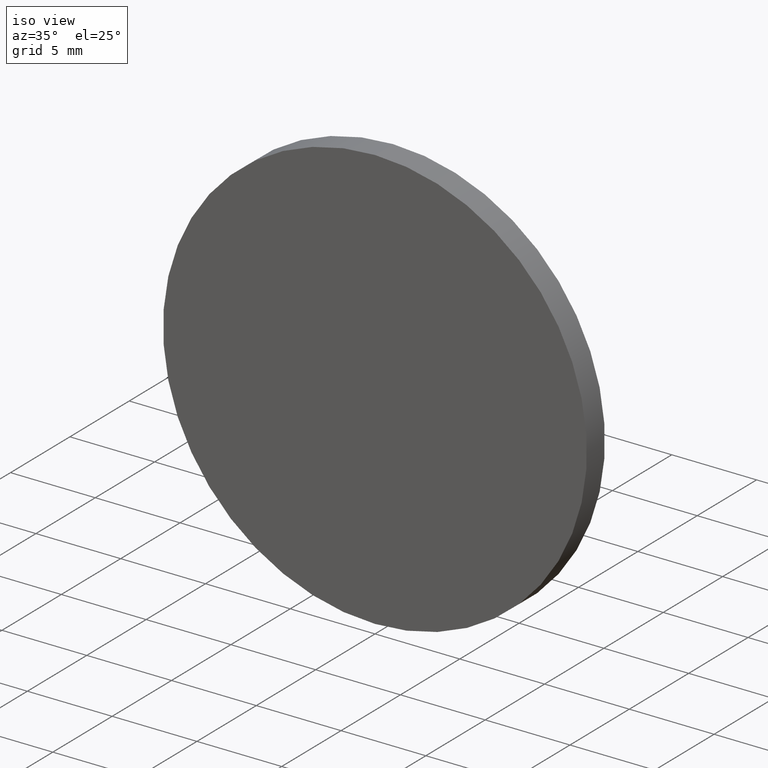
[diagram: clean part render]
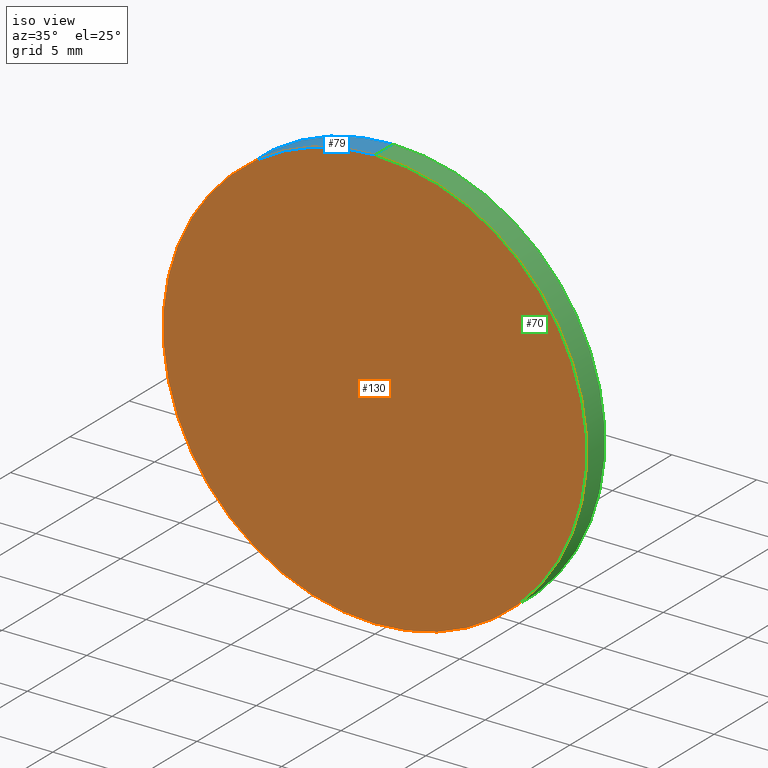
[diagram: same view with three faces highlighted in distinct colors, each labeled with its STEP entity id]
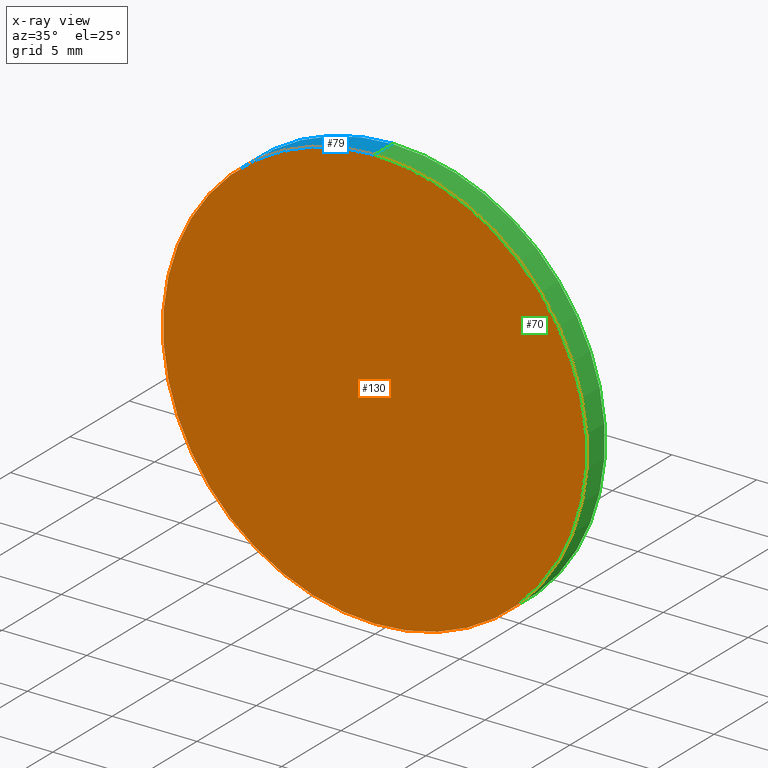
[diagram: x-ray of the same camera — body ghosted, the three highlighted faces saturated]
A machine part, iso view with three faces highlighted in distinct colors.
The next image is the same camera in x-ray (body ghosted, the three faces saturated) — at least one of them is partly hidden behind the body in this view.
Their STEP definitions:

[orange] entity #130 — the highlighted planar face has unit normal (0, 1, 0).
#11 = VERTEX_POINT ( 'NONE', #45 ) ;
#13 = AXIS2_PLACEMENT_3D ( 'NONE', #47, #119, #46 ) ;
#14 = CARTESIAN_POINT ( 'NONE',  ( 0.0000000000000000000, 0.0000000000000000000, 0.0000000000000000000 ) ) ;
#15 = DIRECTION ( 'NONE',  ( 0.0000000000000000000, 1.000000000000000000, 0.0000000000000000000 ) ) ;
#18 = AXIS2_PLACEMENT_3D ( 'NONE', #14, #15, #107 ) ;
#20 = EDGE_CURVE ( 'NONE', #11, #98, #90, .T. ) ;
#38 = ORIENTED_EDGE ( 'NONE', *, *, #50, .F. ) ;
#39 = DIRECTION ( 'NONE',  ( 0.0000000000000000000, 0.0000000000000000000, 1.000000000000000000 ) ) ;
#45 = CARTESIAN_POINT ( 'NONE',  ( 0.0000000000000000000, 0.0000000000000000000, -12.50000000000000000 ) ) ;
#46 = DIRECTION ( 'NONE',  ( 0.0000000000000000000, 0.0000000000000000000, 1.000000000000000000 ) ) ;
#47 = CARTESIAN_POINT ( 'NONE',  ( 0.0000000000000000000, 0.0000000000000000000, 0.0000000000000000000 ) ) ;
#50 = EDGE_CURVE ( 'NONE', #98, #11, #112, .T. ) ;
#51 = CARTESIAN_POINT ( 'NONE',  ( 0.0000000000000000000, 0.0000000000000000000, 0.0000000000000000000 ) ) ;
#68 = CARTESIAN_POINT ( 'NONE',  ( 1.530808498934191500E-015, 0.0000000000000000000, 12.50000000000000000 ) ) ;
#82 = AXIS2_PLACEMENT_3D ( 'NONE', #51, #127, #39 ) ;
#84 = EDGE_LOOP ( 'NONE', ( #124, #38 ) ) ;
#90 = CIRCLE ( 'NONE', #13, 12.50000000000000000 ) ;
#94 = PLANE ( 'NONE',  #18 ) ;
#95 = FACE_OUTER_BOUND ( 'NONE', #84, .T. ) ;
#98 = VERTEX_POINT ( 'NONE', #68 ) ;
#107 = DIRECTION ( 'NONE',  ( 0.0000000000000000000, -0.0000000000000000000, 1.000000000000000000 ) ) ;
#112 = CIRCLE ( 'NONE', #82, 12.50000000000000000 ) ;
#119 = DIRECTION ( 'NONE',  ( 0.0000000000000000000, 1.000000000000000000, 0.0000000000000000000 ) ) ;
#124 = ORIENTED_EDGE ( 'NONE', *, *, #20, .F. ) ;
#127 = DIRECTION ( 'NONE',  ( 0.0000000000000000000, 1.000000000000000000, 0.0000000000000000000 ) ) ;
#130 = ADVANCED_FACE ( 'NONE', ( #95 ), #94, .F. ) ;

[blue] entity #79 — the highlighted cylindrical surface (partial cylindrical patch) has radius 12.5 mm, axis along (-0, -1, -0).
#4 = CYLINDRICAL_SURFACE ( 'NONE', #19, 12.50000000000000000 ) ;
#9 = ORIENTED_EDGE ( 'NONE', *, *, #57, .F. ) ;
#11 = VERTEX_POINT ( 'NONE', #45 ) ;
#12 = DIRECTION ( 'NONE',  ( -0.0000000000000000000, -1.000000000000000000, -0.0000000000000000000 ) ) ;
#13 = AXIS2_PLACEMENT_3D ( 'NONE', #47, #119, #46 ) ;
#16 = DIRECTION ( 'NONE',  ( -0.0000000000000000000, -1.000000000000000000, -0.0000000000000000000 ) ) ;
#19 = AXIS2_PLACEMENT_3D ( 'NONE', #89, #12, #29 ) ;
#20 = EDGE_CURVE ( 'NONE', #11, #98, #90, .T. ) ;
#29 = DIRECTION ( 'NONE',  ( 0.0000000000000000000, 0.0000000000000000000, -1.000000000000000000 ) ) ;
#34 = ORIENTED_EDGE ( 'NONE', *, *, #86, .T. ) ;
#35 = EDGE_LOOP ( 'NONE', ( #9, #122, #34, #126 ) ) ;
#40 = FACE_OUTER_BOUND ( 'NONE', #35, .T. ) ;
#45 = CARTESIAN_POINT ( 'NONE',  ( 0.0000000000000000000, 0.0000000000000000000, -12.50000000000000000 ) ) ;
#46 = DIRECTION ( 'NONE',  ( 0.0000000000000000000, 0.0000000000000000000, 1.000000000000000000 ) ) ;
#47 = CARTESIAN_POINT ( 'NONE',  ( 0.0000000000000000000, 0.0000000000000000000, 0.0000000000000000000 ) ) ;
#57 = EDGE_CURVE ( 'NONE', #101, #98, #76, .T. ) ;
#58 = CARTESIAN_POINT ( 'NONE',  ( 1.530808498934191500E-015, 1.520000000000000000, 12.50000000000000000 ) ) ;
#61 = DIRECTION ( 'NONE',  ( 0.0000000000000000000, 1.000000000000000000, 0.0000000000000000000 ) ) ;
#65 = VERTEX_POINT ( 'NONE', #114 ) ;
#68 = CARTESIAN_POINT ( 'NONE',  ( 1.530808498934191500E-015, 0.0000000000000000000, 12.50000000000000000 ) ) ;
#76 = LINE ( 'NONE', #135, #87 ) ;
#79 = ADVANCED_FACE ( 'NONE', ( #40 ), #4, .T. ) ;
#80 = CARTESIAN_POINT ( 'NONE',  ( 0.0000000000000000000, 1.520000000000000000, -12.50000000000000000 ) ) ;
#86 = EDGE_CURVE ( 'NONE', #65, #11, #134, .T. ) ;
#87 = VECTOR ( 'NONE', #110, 1000.000000000000000 ) ;
#89 = CARTESIAN_POINT ( 'NONE',  ( 0.0000000000000000000, 1.520000000000000000, 0.0000000000000000000 ) ) ;
#90 = CIRCLE ( 'NONE', #13, 12.50000000000000000 ) ;
#98 = VERTEX_POINT ( 'NONE', #68 ) ;
#101 = VERTEX_POINT ( 'NONE', #58 ) ;
#109 = AXIS2_PLACEMENT_3D ( 'NONE', #129, #61, #136 ) ;
#110 = DIRECTION ( 'NONE',  ( -0.0000000000000000000, -1.000000000000000000, -0.0000000000000000000 ) ) ;
#114 = CARTESIAN_POINT ( 'NONE',  ( 0.0000000000000000000, 1.520000000000000000, -12.50000000000000000 ) ) ;
#119 = DIRECTION ( 'NONE',  ( 0.0000000000000000000, 1.000000000000000000, 0.0000000000000000000 ) ) ;
#122 = ORIENTED_EDGE ( 'NONE', *, *, #140, .F. ) ;
#126 = ORIENTED_EDGE ( 'NONE', *, *, #20, .T. ) ;
#129 = CARTESIAN_POINT ( 'NONE',  ( 0.0000000000000000000, 1.520000000000000000, 0.0000000000000000000 ) ) ;
#133 = VECTOR ( 'NONE', #16, 1000.000000000000000 ) ;
#134 = LINE ( 'NONE', #80, #133 ) ;
#135 = CARTESIAN_POINT ( 'NONE',  ( 1.530808498934191500E-015, 1.520000000000000000, 12.50000000000000000 ) ) ;
#136 = DIRECTION ( 'NONE',  ( 0.0000000000000000000, 0.0000000000000000000, 1.000000000000000000 ) ) ;
#138 = CIRCLE ( 'NONE', #109, 12.50000000000000000 ) ;
#140 = EDGE_CURVE ( 'NONE', #65, #101, #138, .T. ) ;

[green] entity #70 — the highlighted cylindrical surface (partial cylindrical patch) has radius 12.5 mm, axis along (-0, -1, -0).
#1 = EDGE_LOOP ( 'NONE', ( #66, #125, #99, #62 ) ) ;
#3 = CARTESIAN_POINT ( 'NONE',  ( 0.0000000000000000000, 1.520000000000000000, 0.0000000000000000000 ) ) ;
#8 = FACE_OUTER_BOUND ( 'NONE', #1, .T. ) ;
#11 = VERTEX_POINT ( 'NONE', #45 ) ;
#16 = DIRECTION ( 'NONE',  ( -0.0000000000000000000, -1.000000000000000000, -0.0000000000000000000 ) ) ;
#21 = DIRECTION ( 'NONE',  ( -0.0000000000000000000, -1.000000000000000000, -0.0000000000000000000 ) ) ;
#39 = DIRECTION ( 'NONE',  ( 0.0000000000000000000, 0.0000000000000000000, 1.000000000000000000 ) ) ;
#45 = CARTESIAN_POINT ( 'NONE',  ( 0.0000000000000000000, 0.0000000000000000000, -12.50000000000000000 ) ) ;
#50 = EDGE_CURVE ( 'NONE', #98, #11, #112, .T. ) ;
#51 = CARTESIAN_POINT ( 'NONE',  ( 0.0000000000000000000, 0.0000000000000000000, 0.0000000000000000000 ) ) ;
#56 = DIRECTION ( 'NONE',  ( 0.0000000000000000000, 0.0000000000000000000, -1.000000000000000000 ) ) ;
#57 = EDGE_CURVE ( 'NONE', #101, #98, #76, .T. ) ;
#58 = CARTESIAN_POINT ( 'NONE',  ( 1.530808498934191500E-015, 1.520000000000000000, 12.50000000000000000 ) ) ;
#62 = ORIENTED_EDGE ( 'NONE', *, *, #86, .F. ) ;
#65 = VERTEX_POINT ( 'NONE', #114 ) ;
#66 = ORIENTED_EDGE ( 'NONE', *, *, #105, .F. ) ;
#68 = CARTESIAN_POINT ( 'NONE',  ( 1.530808498934191500E-015, 0.0000000000000000000, 12.50000000000000000 ) ) ;
#70 = ADVANCED_FACE ( 'NONE', ( #8 ), #137, .T. ) ;
#74 = AXIS2_PLACEMENT_3D ( 'NONE', #103, #21, #56 ) ;
#76 = LINE ( 'NONE', #135, #87 ) ;
#78 = DIRECTION ( 'NONE',  ( 0.0000000000000000000, 1.000000000000000000, 0.0000000000000000000 ) ) ;
#80 = CARTESIAN_POINT ( 'NONE',  ( 0.0000000000000000000, 1.520000000000000000, -12.50000000000000000 ) ) ;
#82 = AXIS2_PLACEMENT_3D ( 'NONE', #51, #127, #39 ) ;
#86 = EDGE_CURVE ( 'NONE', #65, #11, #134, .T. ) ;
#87 = VECTOR ( 'NONE', #110, 1000.000000000000000 ) ;
#93 = DIRECTION ( 'NONE',  ( 0.0000000000000000000, 0.0000000000000000000, 1.000000000000000000 ) ) ;
#98 = VERTEX_POINT ( 'NONE', #68 ) ;
#99 = ORIENTED_EDGE ( 'NONE', *, *, #50, .T. ) ;
#101 = VERTEX_POINT ( 'NONE', #58 ) ;
#103 = CARTESIAN_POINT ( 'NONE',  ( 0.0000000000000000000, 1.520000000000000000, 0.0000000000000000000 ) ) ;
#105 = EDGE_CURVE ( 'NONE', #101, #65, #123, .T. ) ;
#110 = DIRECTION ( 'NONE',  ( -0.0000000000000000000, -1.000000000000000000, -0.0000000000000000000 ) ) ;
#112 = CIRCLE ( 'NONE', #82, 12.50000000000000000 ) ;
#113 = AXIS2_PLACEMENT_3D ( 'NONE', #3, #78, #93 ) ;
#114 = CARTESIAN_POINT ( 'NONE',  ( 0.0000000000000000000, 1.520000000000000000, -12.50000000000000000 ) ) ;
#123 = CIRCLE ( 'NONE', #113, 12.50000000000000000 ) ;
#125 = ORIENTED_EDGE ( 'NONE', *, *, #57, .T. ) ;
#127 = DIRECTION ( 'NONE',  ( 0.0000000000000000000, 1.000000000000000000, 0.0000000000000000000 ) ) ;
#133 = VECTOR ( 'NONE', #16, 1000.000000000000000 ) ;
#134 = LINE ( 'NONE', #80, #133 ) ;
#135 = CARTESIAN_POINT ( 'NONE',  ( 1.530808498934191500E-015, 1.520000000000000000, 12.50000000000000000 ) ) ;
#137 = CYLINDRICAL_SURFACE ( 'NONE', #74, 12.50000000000000000 ) ;